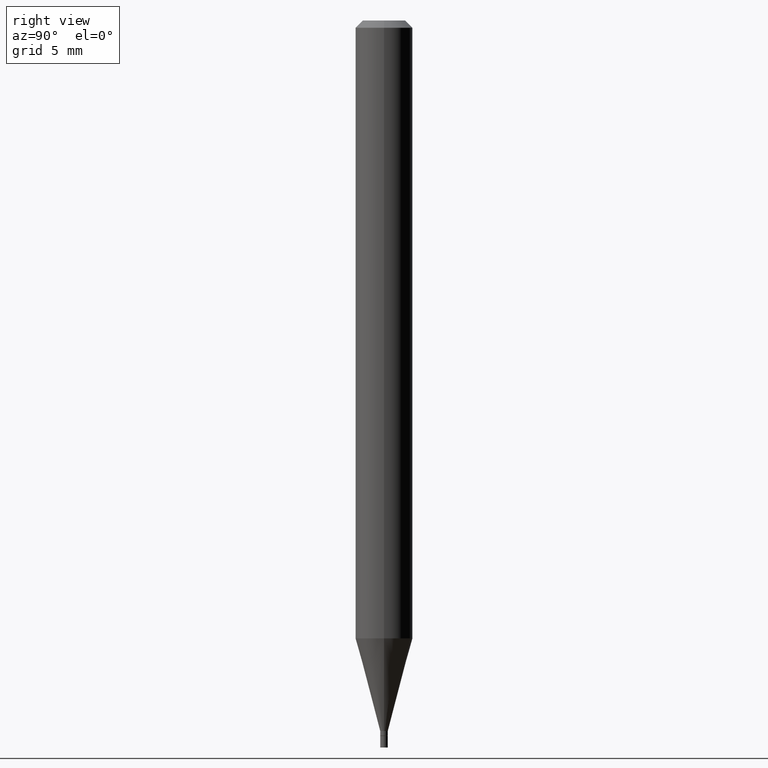
[diagram: clean part render]
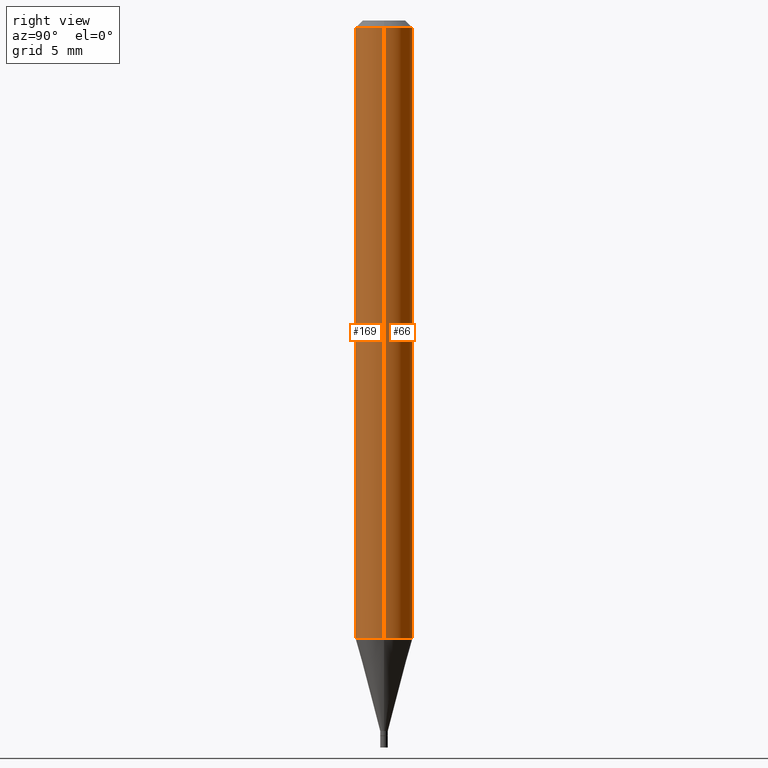
[diagram: same view with one multi-face feature highlighted, each face labeled with its STEP entity id]
A machine part, right view. The highlighted faces form ONE feature: a constant-radius fillet chain: 2 tangent blend faces with common blend radius 1.4999 mm. The faces share edges in the B-rep.
Their STEP definitions:
[1] entity #66 (Cylinder):
#1 = DIRECTION ( 'NONE',  ( 1.000000000000000000, -6.982962677686273021E-15, 0.000000000000000000 ) ) ;
#4 = ORIENTED_EDGE ( 'NONE', *, *, #37, .F. ) ;
#18 = DIRECTION ( 'NONE',  ( 1.000000000000000000, -6.982962677686266711E-15, 0.000000000000000000 ) ) ;
#23 = CIRCLE ( 'NONE', #44, 0.05904999999999999832 ) ;
#37 = EDGE_CURVE ( 'NONE', #390, #127, #278, .T. ) ;
#44 = AXIS2_PLACEMENT_3D ( 'NONE', #327, #442, #18 ) ;
#60 = DIRECTION ( 'NONE',  ( -2.445468806185136877E-29, 3.491481338843145188E-15, 1.000000000000000000 ) ) ;
#61 = FACE_OUTER_BOUND ( 'NONE', #155, .T. ) ;
#66 = ADVANCED_FACE ( 'NONE', ( #61 ), #384, .T. ) ;
#92 = CARTESIAN_POINT ( 'NONE',  ( 0.05904999999999998445, -4.863699838449076344E-15, -1.274918998652473823 ) ) ;
#93 = CARTESIAN_POINT ( 'NONE',  ( 0.05904999999999999832, -4.647161662000212105E-16, -0.01499999999999999944 ) ) ;
#99 = DIRECTION ( 'NONE',  ( 1.000000000000000000, -6.982962677686266711E-15, 4.876176775795936353E-29 ) ) ;
#127 = VERTEX_POINT ( 'NONE', #93 ) ;
#129 = CARTESIAN_POINT ( 'NONE',  ( -0.05904999999999999832, 4.195754854663391478E-16, -2.904631170795521892E-30 ) ) ;
#135 = VERTEX_POINT ( 'NONE', #323 ) ;
#143 = VECTOR ( 'NONE', #60, 39.37007874015748143 ) ;
#152 = ORIENTED_EDGE ( 'NONE', *, *, #252, .T. ) ;
#155 = EDGE_LOOP ( 'NONE', ( #321, #152, #365, #4 ) ) ;
#161 = CIRCLE ( 'NONE', #319, 0.05904999999999999832 ) ;
#167 = LINE ( 'NONE', #129, #272 ) ;
#176 = CARTESIAN_POINT ( 'NONE',  ( 0.05904999999999999832, -4.123439461173740327E-16, 2.879382386107500220E-30 ) ) ;
#186 = DIRECTION ( 'NONE',  ( -2.445468806185136597E-29, 3.491481338843145583E-15, 1.000000000000000000 ) ) ;
#200 = CARTESIAN_POINT ( 'NONE',  ( 3.117774641617414915E-29, -4.451355892331702213E-15, -1.274918998652473823 ) ) ;
#206 = CARTESIAN_POINT ( 'NONE',  ( 0.000000000000000000, 0.000000000000000000, 0.000000000000000000 ) ) ;
#207 = DIRECTION ( 'NONE',  ( -2.445468806185136597E-29, 3.491481338843145583E-15, 1.000000000000000000 ) ) ;
#252 = EDGE_CURVE ( 'NONE', #397, #135, #167, .T. ) ;
#258 = AXIS2_PLACEMENT_3D ( 'NONE', #206, #207, #99 ) ;
#272 = VECTOR ( 'NONE', #298, 39.37007874015748143 ) ;
#278 = LINE ( 'NONE', #176, #143 ) ;
#291 = CARTESIAN_POINT ( 'NONE',  ( -0.05904999999999998445, -4.031780406865363509E-15, -1.274918998652473823 ) ) ;
#298 = DIRECTION ( 'NONE',  ( -2.445468806185136877E-29, 3.491481338843145188E-15, 1.000000000000000000 ) ) ;
#319 = AXIS2_PLACEMENT_3D ( 'NONE', #200, #186, #1 ) ;
#321 = ORIENTED_EDGE ( 'NONE', *, *, #433, .T. ) ;
#323 = CARTESIAN_POINT ( 'NONE',  ( -0.05904999999999999832, -1.832288570740835350E-15, -0.01499999999999999944 ) ) ;
#327 = CARTESIAN_POINT ( 'NONE',  ( 3.668203209277705088E-31, -5.237222008264718399E-17, -0.01499999999999999944 ) ) ;
#365 = ORIENTED_EDGE ( 'NONE', *, *, #387, .F. ) ;
#384 = CYLINDRICAL_SURFACE ( 'NONE', #258, 0.05904999999999999832 ) ;
#387 = EDGE_CURVE ( 'NONE', #127, #135, #23, .T. ) ;
#390 = VERTEX_POINT ( 'NONE', #92 ) ;
#397 = VERTEX_POINT ( 'NONE', #291 ) ;
#433 = EDGE_CURVE ( 'NONE', #390, #397, #161, .T. ) ;
#442 = DIRECTION ( 'NONE',  ( -2.445468806185136597E-29, 3.491481338843145583E-15, 1.000000000000000000 ) ) ;
[2] entity #169 (Cylinder):
#15 = CARTESIAN_POINT ( 'NONE',  ( 0.000000000000000000, 0.000000000000000000, 0.000000000000000000 ) ) ;
#16 = EDGE_CURVE ( 'NONE', #135, #127, #239, .T. ) ;
#37 = EDGE_CURVE ( 'NONE', #390, #127, #278, .T. ) ;
#60 = DIRECTION ( 'NONE',  ( -2.445468806185136877E-29, 3.491481338843145188E-15, 1.000000000000000000 ) ) ;
#92 = CARTESIAN_POINT ( 'NONE',  ( 0.05904999999999998445, -4.863699838449076344E-15, -1.274918998652473823 ) ) ;
#93 = CARTESIAN_POINT ( 'NONE',  ( 0.05904999999999999832, -4.647161662000212105E-16, -0.01499999999999999944 ) ) ;
#123 = ORIENTED_EDGE ( 'NONE', *, *, #352, .T. ) ;
#127 = VERTEX_POINT ( 'NONE', #93 ) ;
#129 = CARTESIAN_POINT ( 'NONE',  ( -0.05904999999999999832, 4.195754854663391478E-16, -2.904631170795521892E-30 ) ) ;
#135 = VERTEX_POINT ( 'NONE', #323 ) ;
#139 = EDGE_LOOP ( 'NONE', ( #400, #123, #274, #189 ) ) ;
#143 = VECTOR ( 'NONE', #60, 39.37007874015748143 ) ;
#157 = CYLINDRICAL_SURFACE ( 'NONE', #233, 0.05904999999999999832 ) ;
#167 = LINE ( 'NONE', #129, #272 ) ;
#169 = ADVANCED_FACE ( 'NONE', ( #259 ), #157, .T. ) ;
#176 = CARTESIAN_POINT ( 'NONE',  ( 0.05904999999999999832, -4.123439461173740327E-16, 2.879382386107500220E-30 ) ) ;
#189 = ORIENTED_EDGE ( 'NONE', *, *, #16, .F. ) ;
#198 = AXIS2_PLACEMENT_3D ( 'NONE', #240, #276, #418 ) ;
#203 = DIRECTION ( 'NONE',  ( -2.445468806185136597E-29, 3.491481338843145583E-15, 1.000000000000000000 ) ) ;
#233 = AXIS2_PLACEMENT_3D ( 'NONE', #15, #203, #275 ) ;
#239 = CIRCLE ( 'NONE', #198, 0.05904999999999999832 ) ;
#240 = CARTESIAN_POINT ( 'NONE',  ( 3.668203209277705088E-31, -5.237222008264718399E-17, -0.01499999999999999944 ) ) ;
#252 = EDGE_CURVE ( 'NONE', #397, #135, #167, .T. ) ;
#255 = DIRECTION ( 'NONE',  ( -2.445468806185136597E-29, 3.491481338843145583E-15, 1.000000000000000000 ) ) ;
#259 = FACE_OUTER_BOUND ( 'NONE', #139, .T. ) ;
#272 = VECTOR ( 'NONE', #298, 39.37007874015748143 ) ;
#274 = ORIENTED_EDGE ( 'NONE', *, *, #37, .T. ) ;
#275 = DIRECTION ( 'NONE',  ( 1.000000000000000000, -6.982962677686266711E-15, 4.876176775795936353E-29 ) ) ;
#276 = DIRECTION ( 'NONE',  ( -2.445468806185136597E-29, 3.491481338843145583E-15, 1.000000000000000000 ) ) ;
#278 = LINE ( 'NONE', #176, #143 ) ;
#291 = CARTESIAN_POINT ( 'NONE',  ( -0.05904999999999998445, -4.031780406865363509E-15, -1.274918998652473823 ) ) ;
#298 = DIRECTION ( 'NONE',  ( -2.445468806185136877E-29, 3.491481338843145188E-15, 1.000000000000000000 ) ) ;
#323 = CARTESIAN_POINT ( 'NONE',  ( -0.05904999999999999832, -1.832288570740835350E-15, -0.01499999999999999944 ) ) ;
#352 = EDGE_CURVE ( 'NONE', #397, #390, #392, .T. ) ;
#361 = AXIS2_PLACEMENT_3D ( 'NONE', #401, #255, #404 ) ;
#390 = VERTEX_POINT ( 'NONE', #92 ) ;
#392 = CIRCLE ( 'NONE', #361, 0.05904999999999999832 ) ;
#397 = VERTEX_POINT ( 'NONE', #291 ) ;
#400 = ORIENTED_EDGE ( 'NONE', *, *, #252, .F. ) ;
#401 = CARTESIAN_POINT ( 'NONE',  ( 3.117774641617414915E-29, -4.451355892331702213E-15, -1.274918998652473823 ) ) ;
#404 = DIRECTION ( 'NONE',  ( 1.000000000000000000, -6.982962677686273021E-15, 0.000000000000000000 ) ) ;
#418 = DIRECTION ( 'NONE',  ( 1.000000000000000000, -6.982962677686266711E-15, 0.000000000000000000 ) ) ;